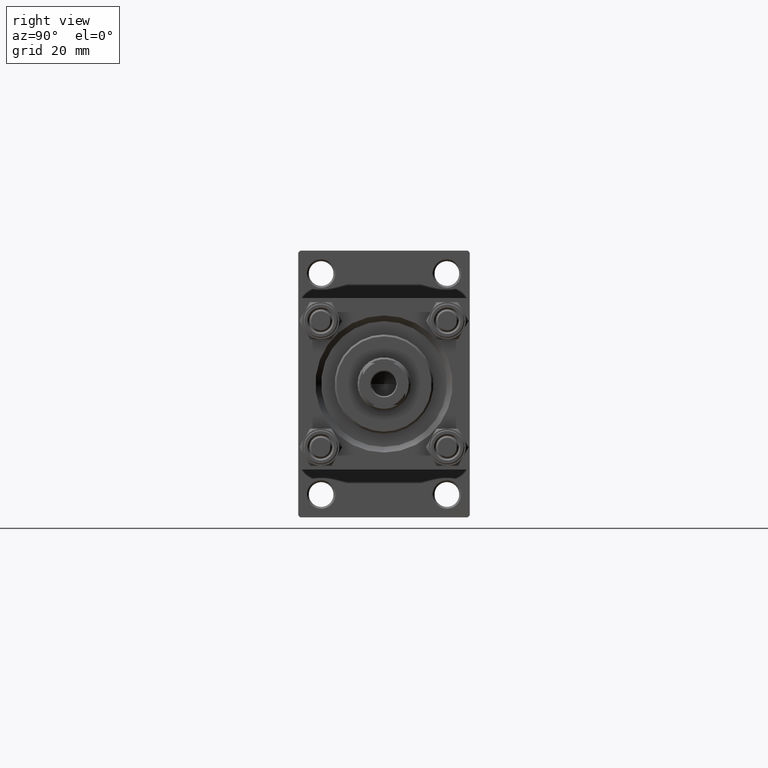
[diagram: clean part render]
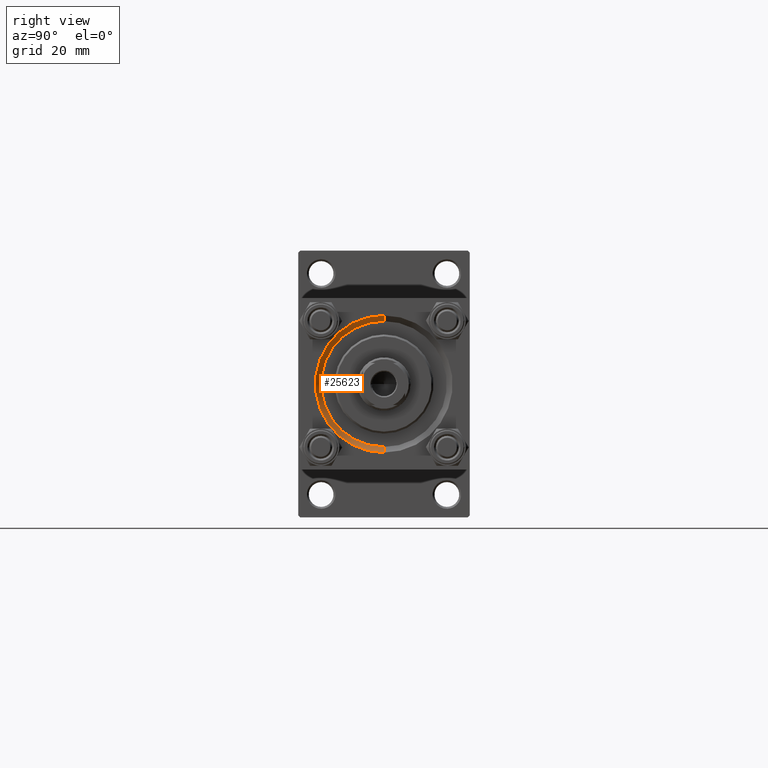
[diagram: same view with one face highlighted and labeled with its STEP entity id]
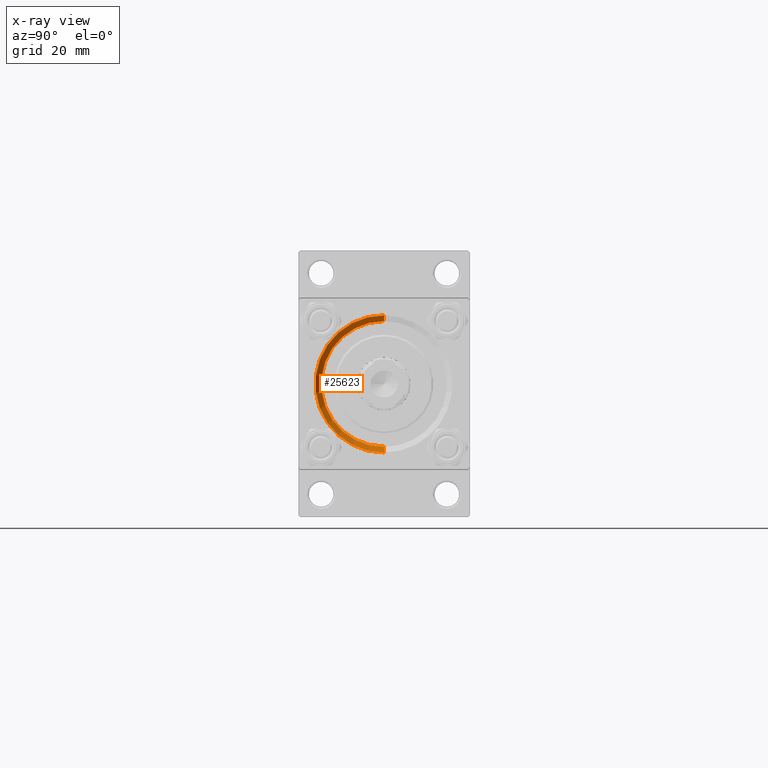
[diagram: x-ray of the same camera — body ghosted, the highlighted face saturated]
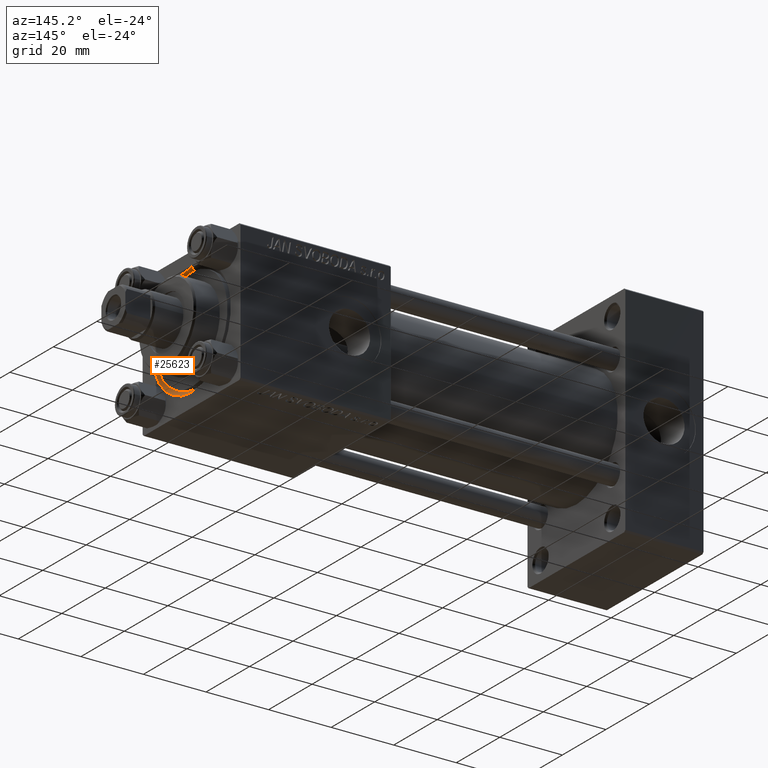
[diagram: same view with one face highlighted and labeled with its STEP entity id]
A machine part, right view. The second image highlights one B-rep face of the part: STEP entity #25623.
The next image is the same camera in x-ray: the body ghosted, the highlighted face saturated — about 0% of this face is hidden behind the body in this view.
A second angle (auxiliary view) of the same face is appended — the face is thin or edge-on in the first view.
In plain terms, the highlighted conical surface has half-angle 45 deg.
Its self-contained STEP definition (entity closure, byte-faithful):
#599 = VERTEX_POINT ( 'NONE', #24208 ) ;
#1540 = AXIS2_PLACEMENT_3D ( 'NONE', #15140, #30057, #38411 ) ;
#1654 = ORIENTED_EDGE ( 'NONE', *, *, #46130, .F. ) ;
#3385 = EDGE_CURVE ( 'NONE', #24701, #17667, #41853, .T. ) ;
#4392 = CARTESIAN_POINT ( 'NONE',  ( 148.0000000000000284, 0.000000000000000000, -18.00000000000001421 ) ) ;
#6401 = CIRCLE ( 'NONE', #1540, 16.50000000000000000 ) ;
#7433 = DIRECTION ( 'NONE',  ( 0.7071067811865441310, 0.000000000000000000, -0.7071067811865507924 ) ) ;
#8958 = DIRECTION ( 'NONE',  ( 0.000000000000000000, 0.000000000000000000, -1.000000000000000000 ) ) ;
#9918 = VECTOR ( 'NONE', #19108, 1000.000000000000114 ) ;
#14012 = ORIENTED_EDGE ( 'NONE', *, *, #3385, .T. ) ;
#15140 = CARTESIAN_POINT ( 'NONE',  ( 146.5000000000000284, 0.000000000000000000, 0.000000000000000000 ) ) ;
#16363 = CARTESIAN_POINT ( 'NONE',  ( 148.0000000000000284, 0.000000000000000000, 0.000000000000000000 ) ) ;
#17667 = VERTEX_POINT ( 'NONE', #48169 ) ;
#19108 = DIRECTION ( 'NONE',  ( 0.7071067811865441310, 8.659560562354972301E-17, 0.7071067811865507924 ) ) ;
#19310 = EDGE_CURVE ( 'NONE', #43960, #17667, #21294, .T. ) ;
#20336 = DIRECTION ( 'NONE',  ( 1.000000000000000000, 0.000000000000000000, 0.000000000000000000 ) ) ;
#20575 = CONICAL_SURFACE ( 'NONE', #33474, 16.50000000000000000, 0.7853981633974529419 ) ;
#20673 = CARTESIAN_POINT ( 'NONE',  ( 146.5000000000000284, 2.020667218593133100E-15, 16.50000000000000000 ) ) ;
#21294 = CIRCLE ( 'NONE', #23713, 18.00000000000001421 ) ;
#23713 = AXIS2_PLACEMENT_3D ( 'NONE', #16363, #35331, #40121 ) ;
#24208 = CARTESIAN_POINT ( 'NONE',  ( 146.5000000000000284, 0.000000000000000000, -16.50000000000000000 ) ) ;
#24701 = VERTEX_POINT ( 'NONE', #20673 ) ;
#25623 = ADVANCED_FACE ( 'NONE', ( #43824 ), #20575, .F. ) ;
#25831 = VECTOR ( 'NONE', #7433, 1000.000000000000114 ) ;
#26887 = CARTESIAN_POINT ( 'NONE',  ( 146.5000000000000284, 0.000000000000000000, -16.50000000000000000 ) ) ;
#30057 = DIRECTION ( 'NONE',  ( 1.000000000000000000, 0.000000000000000000, 0.000000000000000000 ) ) ;
#33474 = AXIS2_PLACEMENT_3D ( 'NONE', #47871, #20336, #8958 ) ;
#35331 = DIRECTION ( 'NONE',  ( -1.000000000000000000, 0.000000000000000000, -0.000000000000000000 ) ) ;
#36435 = ORIENTED_EDGE ( 'NONE', *, *, #19310, .F. ) ;
#38411 = DIRECTION ( 'NONE',  ( 0.000000000000000000, 0.000000000000000000, 1.000000000000000000 ) ) ;
#39317 = EDGE_LOOP ( 'NONE', ( #1654, #14012, #36435, #42266 ) ) ;
#40121 = DIRECTION ( 'NONE',  ( 0.000000000000000000, 0.000000000000000000, 1.000000000000000000 ) ) ;
#41853 = LINE ( 'NONE', #45142, #9918 ) ;
#42054 = LINE ( 'NONE', #26887, #25831 ) ;
#42266 = ORIENTED_EDGE ( 'NONE', *, *, #49499, .F. ) ;
#43824 = FACE_OUTER_BOUND ( 'NONE', #39317, .T. ) ;
#43960 = VERTEX_POINT ( 'NONE', #4392 ) ;
#45142 = CARTESIAN_POINT ( 'NONE',  ( 146.5000000000000284, 2.020667218593133100E-15, 16.50000000000000000 ) ) ;
#46130 = EDGE_CURVE ( 'NONE', #24701, #599, #6401, .T. ) ;
#47871 = CARTESIAN_POINT ( 'NONE',  ( 146.5000000000000284, 0.000000000000000000, 0.000000000000000000 ) ) ;
#48169 = CARTESIAN_POINT ( 'NONE',  ( 148.0000000000000284, 2.204364238465237794E-15, 18.00000000000001421 ) ) ;
#49499 = EDGE_CURVE ( 'NONE', #599, #43960, #42054, .T. ) ;